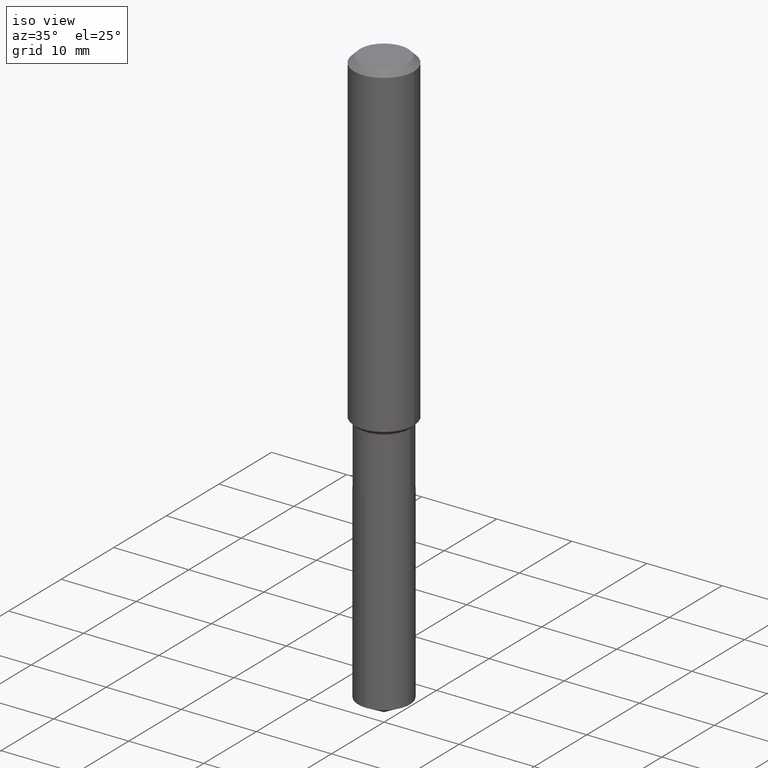
[diagram: clean part render]
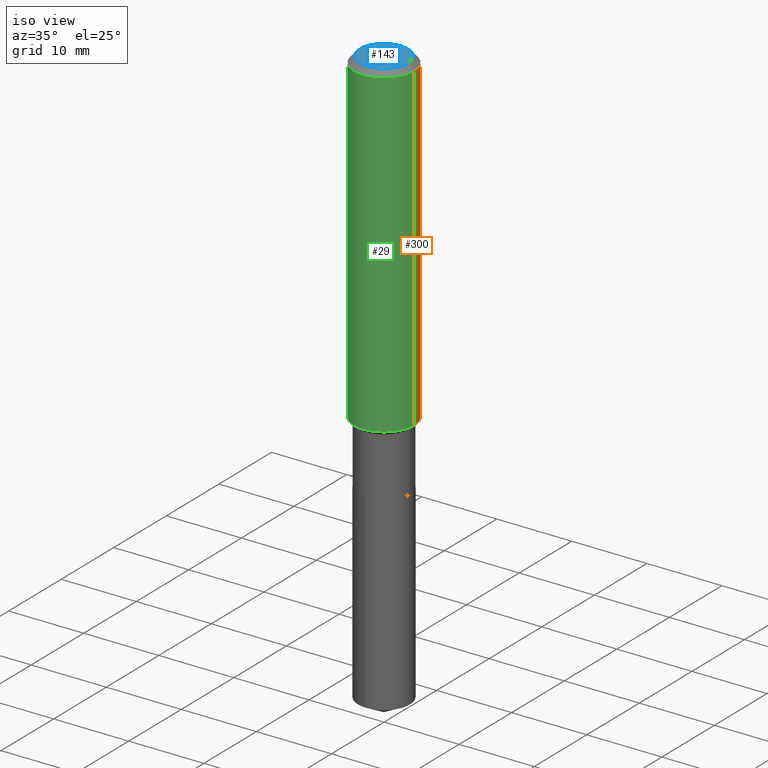
[diagram: same view with three faces highlighted in distinct colors, each labeled with its STEP entity id]
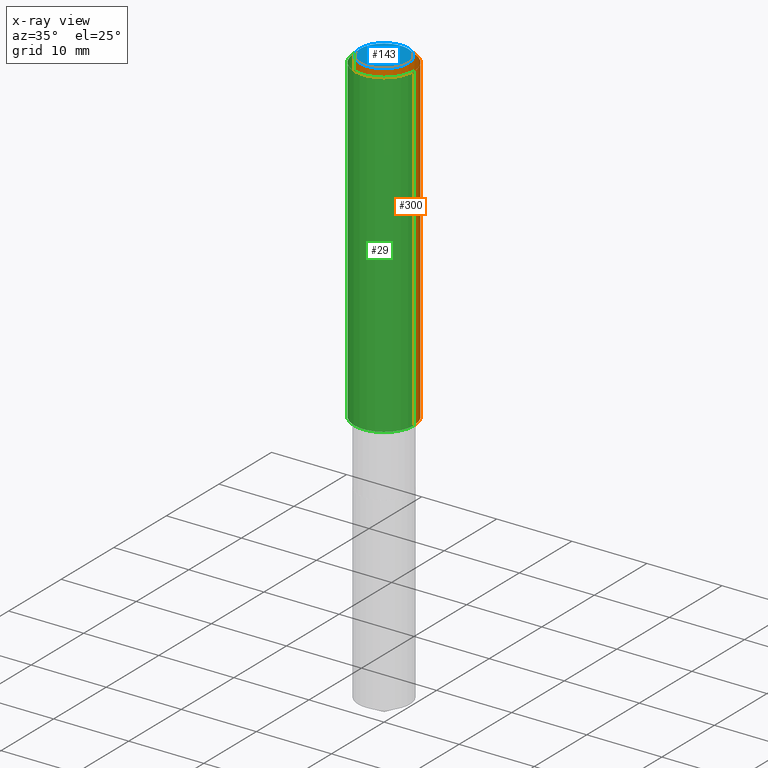
[diagram: x-ray of the same camera — body ghosted, the three highlighted faces saturated]
A machine part, iso view with three faces highlighted in distinct colors.
The next image is the same camera in x-ray (body ghosted, the three faces saturated) — at least one of them is partly hidden behind the body in this view.
Their STEP definitions:

[orange] entity #300 — the highlighted cylindrical surface (partial cylindrical patch) has radius 4.0005 mm, axis along (-0, 0, 1).
#2 = CARTESIAN_POINT ( 'NONE',  ( 0.1575000000000001954, -7.067281952019349393E-15, -1.709149999999999725 ) ) ;
#3 = VECTOR ( 'NONE', #383, 39.37007874015748143 ) ;
#31 = CARTESIAN_POINT ( 'NONE',  ( 0.000000000000000000, 0.000000000000000000, 0.000000000000000000 ) ) ;
#35 = LINE ( 'NONE', #420, #3 ) ;
#42 = AXIS2_PLACEMENT_3D ( 'NONE', #489, #152, #230 ) ;
#47 = VERTEX_POINT ( 'NONE', #395 ) ;
#51 = CIRCLE ( 'NONE', #42, 0.1575000000000000011 ) ;
#80 = EDGE_CURVE ( 'NONE', #334, #47, #179, .T. ) ;
#106 = EDGE_LOOP ( 'NONE', ( #414, #271, #318, #293 ) ) ;
#152 = DIRECTION ( 'NONE',  ( -2.445468806185136597E-29, 3.491481338843145583E-15, 1.000000000000000000 ) ) ;
#165 = EDGE_CURVE ( 'NONE', #348, #334, #304, .T. ) ;
#179 = LINE ( 'NONE', #246, #247 ) ;
#187 = DIRECTION ( 'NONE',  ( 1.000000000000000000, -6.982962677686265922E-15, 0.000000000000000000 ) ) ;
#193 = CYLINDRICAL_SURFACE ( 'NONE', #201, 0.1575000000000000844 ) ;
#194 = AXIS2_PLACEMENT_3D ( 'NONE', #259, #373, #187 ) ;
#195 = CARTESIAN_POINT ( 'NONE',  ( 0.1575000000000000011, -1.209798283909146741E-15, -0.03150000000000019451 ) ) ;
#201 = AXIS2_PLACEMENT_3D ( 'NONE', #31, #340, #303 ) ;
#230 = DIRECTION ( 'NONE',  ( 1.000000000000000000, -6.982962677686265922E-15, 0.000000000000000000 ) ) ;
#246 = CARTESIAN_POINT ( 'NONE',  ( -0.1575000000000000844, 1.119104808822158392E-15, -7.747322767151481189E-30 ) ) ;
#247 = VECTOR ( 'NONE', #366, 39.37007874015748143 ) ;
#259 = CARTESIAN_POINT ( 'NONE',  ( 4.179673010091325437E-29, -5.967465330283761124E-15, -1.709149999999999725 ) ) ;
#271 = ORIENTED_EDGE ( 'NONE', *, *, #80, .T. ) ;
#293 = ORIENTED_EDGE ( 'NONE', *, *, #365, .F. ) ;
#300 = ADVANCED_FACE ( 'NONE', ( #411 ), #193, .T. ) ;
#303 = DIRECTION ( 'NONE',  ( 1.000000000000000000, -6.982962677686267499E-15, 4.876176775795936353E-29 ) ) ;
#304 = CIRCLE ( 'NONE', #194, 0.1575000000000001954 ) ;
#310 = VERTEX_POINT ( 'NONE', #195 ) ;
#318 = ORIENTED_EDGE ( 'NONE', *, *, #431, .F. ) ;
#334 = VERTEX_POINT ( 'NONE', #450 ) ;
#340 = DIRECTION ( 'NONE',  ( -2.445468806185136597E-29, 3.491481338843145583E-15, 1.000000000000000000 ) ) ;
#348 = VERTEX_POINT ( 'NONE', #2 ) ;
#365 = EDGE_CURVE ( 'NONE', #348, #310, #35, .T. ) ;
#366 = DIRECTION ( 'NONE',  ( -2.445468806185136877E-29, 3.491481338843145188E-15, 1.000000000000000000 ) ) ;
#373 = DIRECTION ( 'NONE',  ( -2.445468806185136597E-29, 3.491481338843145583E-15, 1.000000000000000000 ) ) ;
#383 = DIRECTION ( 'NONE',  ( -2.445468806185136877E-29, 3.491481338843145188E-15, 1.000000000000000000 ) ) ;
#395 = CARTESIAN_POINT ( 'NONE',  ( -0.1575000000000000011, -1.919618687406501110E-15, -0.03150000000000019451 ) ) ;
#411 = FACE_OUTER_BOUND ( 'NONE', #106, .T. ) ;
#414 = ORIENTED_EDGE ( 'NONE', *, *, #165, .T. ) ;
#420 = CARTESIAN_POINT ( 'NONE',  ( 0.1575000000000000844, -1.099816621735587677E-15, 7.679978421878603638E-30 ) ) ;
#431 = EDGE_CURVE ( 'NONE', #310, #47, #51, .T. ) ;
#450 = CARTESIAN_POINT ( 'NONE',  ( -0.1575000000000001954, -4.848360521461601943E-15, -1.709149999999999725 ) ) ;
#489 = CARTESIAN_POINT ( 'NONE',  ( 7.703226739483228723E-31, -1.099816621735597661E-16, -0.03150000000000019451 ) ) ;

[blue] entity #143 — the highlighted planar face has unit normal (0, -0, -1).
#23 = DIRECTION ( 'NONE',  ( 2.438088387897960049E-29, -3.491481338843145188E-15, -1.000000000000000000 ) ) ;
#28 = FACE_OUTER_BOUND ( 'NONE', #119, .T. ) ;
#59 = PLANE ( 'NONE',  #437 ) ;
#73 = DIRECTION ( 'NONE',  ( -2.445468806185136597E-29, 3.491481338843145583E-15, 1.000000000000000000 ) ) ;
#97 = CARTESIAN_POINT ( 'NONE',  ( -9.439721640706201686E-47, 1.347742071746726764E-32, 3.860086710912459732E-18 ) ) ;
#99 = CIRCLE ( 'NONE', #224, 0.1260000000000000009 ) ;
#119 = EDGE_LOOP ( 'NONE', ( #233, #192 ) ) ;
#142 = DIRECTION ( 'NONE',  ( 1.000000000000000000, -6.982962677686265922E-15, 4.876281427513067258E-29 ) ) ;
#143 = ADVANCED_FACE ( 'NONE', ( #28 ), #59, .F. ) ;
#153 = VERTEX_POINT ( 'NONE', #185 ) ;
#185 = CARTESIAN_POINT ( 'NONE',  ( -0.1260000000000000009, 9.348441284752484904E-16, 3.860086710906114178E-18 ) ) ;
#186 = EDGE_CURVE ( 'NONE', #153, #208, #464, .T. ) ;
#192 = ORIENTED_EDGE ( 'NONE', *, *, #251, .T. ) ;
#208 = VERTEX_POINT ( 'NONE', #401 ) ;
#224 = AXIS2_PLACEMENT_3D ( 'NONE', #97, #73, #457 ) ;
#233 = ORIENTED_EDGE ( 'NONE', *, *, #186, .T. ) ;
#251 = EDGE_CURVE ( 'NONE', #208, #153, #99, .T. ) ;
#297 = DIRECTION ( 'NONE',  ( -2.445468806185136597E-29, 3.491481338843145583E-15, 1.000000000000000000 ) ) ;
#324 = AXIS2_PLACEMENT_3D ( 'NONE', #477, #297, #142 ) ;
#333 = DIRECTION ( 'NONE',  ( -1.000000000000000000, 6.982962677686265922E-15, -4.876176775795935793E-29 ) ) ;
#370 = CARTESIAN_POINT ( 'NONE',  ( -4.719860820353100843E-47, 6.738710358733633822E-33, 1.930043355456229866E-18 ) ) ;
#401 = CARTESIAN_POINT ( 'NONE',  ( 0.1260000000000000009, -1.027466422270894443E-15, 3.860086710919128072E-18 ) ) ;
#437 = AXIS2_PLACEMENT_3D ( 'NONE', #370, #23, #333 ) ;
#457 = DIRECTION ( 'NONE',  ( 1.000000000000000000, -6.982962677686265922E-15, 4.876281427513067258E-29 ) ) ;
#464 = CIRCLE ( 'NONE', #324, 0.1260000000000000009 ) ;
#477 = CARTESIAN_POINT ( 'NONE',  ( -9.439721640706201686E-47, 1.347742071746726764E-32, 3.860086710912459732E-18 ) ) ;

[green] entity #29 — the highlighted cylindrical surface (partial cylindrical patch) has radius 4.0005 mm, axis along (-0, 0, 1).
#2 = CARTESIAN_POINT ( 'NONE',  ( 0.1575000000000001954, -7.067281952019349393E-15, -1.709149999999999725 ) ) ;
#3 = VECTOR ( 'NONE', #383, 39.37007874015748143 ) ;
#29 = ADVANCED_FACE ( 'NONE', ( #176 ), #326, .T. ) ;
#35 = LINE ( 'NONE', #420, #3 ) ;
#47 = VERTEX_POINT ( 'NONE', #395 ) ;
#76 = ORIENTED_EDGE ( 'NONE', *, *, #141, .T. ) ;
#80 = EDGE_CURVE ( 'NONE', #334, #47, #179, .T. ) ;
#85 = EDGE_CURVE ( 'NONE', #47, #310, #284, .T. ) ;
#141 = EDGE_CURVE ( 'NONE', #334, #348, #223, .T. ) ;
#147 = AXIS2_PLACEMENT_3D ( 'NONE', #356, #280, #180 ) ;
#173 = DIRECTION ( 'NONE',  ( -2.445468806185136597E-29, 3.491481338843145583E-15, 1.000000000000000000 ) ) ;
#176 = FACE_OUTER_BOUND ( 'NONE', #458, .T. ) ;
#179 = LINE ( 'NONE', #246, #247 ) ;
#180 = DIRECTION ( 'NONE',  ( 1.000000000000000000, -6.982962677686265922E-15, 0.000000000000000000 ) ) ;
#195 = CARTESIAN_POINT ( 'NONE',  ( 0.1575000000000000011, -1.209798283909146741E-15, -0.03150000000000019451 ) ) ;
#216 = DIRECTION ( 'NONE',  ( -2.445468806185136597E-29, 3.491481338843145583E-15, 1.000000000000000000 ) ) ;
#220 = DIRECTION ( 'NONE',  ( 1.000000000000000000, -6.982962677686265922E-15, 0.000000000000000000 ) ) ;
#223 = CIRCLE ( 'NONE', #354, 0.1575000000000001954 ) ;
#246 = CARTESIAN_POINT ( 'NONE',  ( -0.1575000000000000844, 1.119104808822158392E-15, -7.747322767151481189E-30 ) ) ;
#247 = VECTOR ( 'NONE', #366, 39.37007874015748143 ) ;
#280 = DIRECTION ( 'NONE',  ( -2.445468806185136597E-29, 3.491481338843145583E-15, 1.000000000000000000 ) ) ;
#284 = CIRCLE ( 'NONE', #147, 0.1575000000000000011 ) ;
#290 = ORIENTED_EDGE ( 'NONE', *, *, #85, .F. ) ;
#310 = VERTEX_POINT ( 'NONE', #195 ) ;
#326 = CYLINDRICAL_SURFACE ( 'NONE', #361, 0.1575000000000000844 ) ;
#334 = VERTEX_POINT ( 'NONE', #450 ) ;
#348 = VERTEX_POINT ( 'NONE', #2 ) ;
#354 = AXIS2_PLACEMENT_3D ( 'NONE', #403, #216, #220 ) ;
#356 = CARTESIAN_POINT ( 'NONE',  ( 7.703226739483228723E-31, -1.099816621735597661E-16, -0.03150000000000019451 ) ) ;
#361 = AXIS2_PLACEMENT_3D ( 'NONE', #467, #173, #438 ) ;
#365 = EDGE_CURVE ( 'NONE', #348, #310, #35, .T. ) ;
#366 = DIRECTION ( 'NONE',  ( -2.445468806185136877E-29, 3.491481338843145188E-15, 1.000000000000000000 ) ) ;
#383 = DIRECTION ( 'NONE',  ( -2.445468806185136877E-29, 3.491481338843145188E-15, 1.000000000000000000 ) ) ;
#395 = CARTESIAN_POINT ( 'NONE',  ( -0.1575000000000000011, -1.919618687406501110E-15, -0.03150000000000019451 ) ) ;
#396 = ORIENTED_EDGE ( 'NONE', *, *, #80, .F. ) ;
#403 = CARTESIAN_POINT ( 'NONE',  ( 4.179673010091325437E-29, -5.967465330283761124E-15, -1.709149999999999725 ) ) ;
#420 = CARTESIAN_POINT ( 'NONE',  ( 0.1575000000000000844, -1.099816621735587677E-15, 7.679978421878603638E-30 ) ) ;
#438 = DIRECTION ( 'NONE',  ( 1.000000000000000000, -6.982962677686267499E-15, 4.876176775795936353E-29 ) ) ;
#450 = CARTESIAN_POINT ( 'NONE',  ( -0.1575000000000001954, -4.848360521461601943E-15, -1.709149999999999725 ) ) ;
#458 = EDGE_LOOP ( 'NONE', ( #396, #76, #460, #290 ) ) ;
#460 = ORIENTED_EDGE ( 'NONE', *, *, #365, .T. ) ;
#467 = CARTESIAN_POINT ( 'NONE',  ( 0.000000000000000000, 0.000000000000000000, 0.000000000000000000 ) ) ;